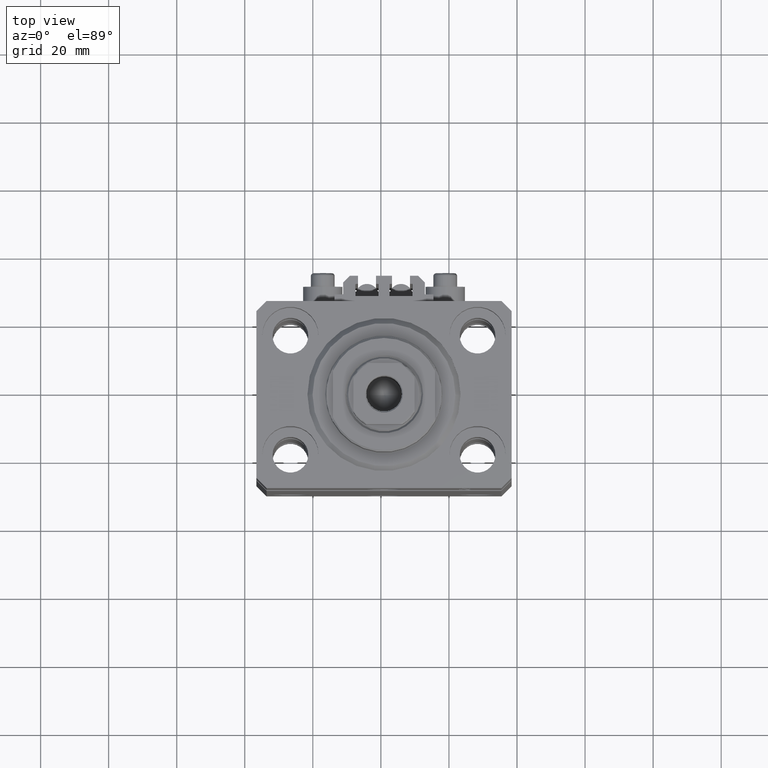
[diagram: clean part render]
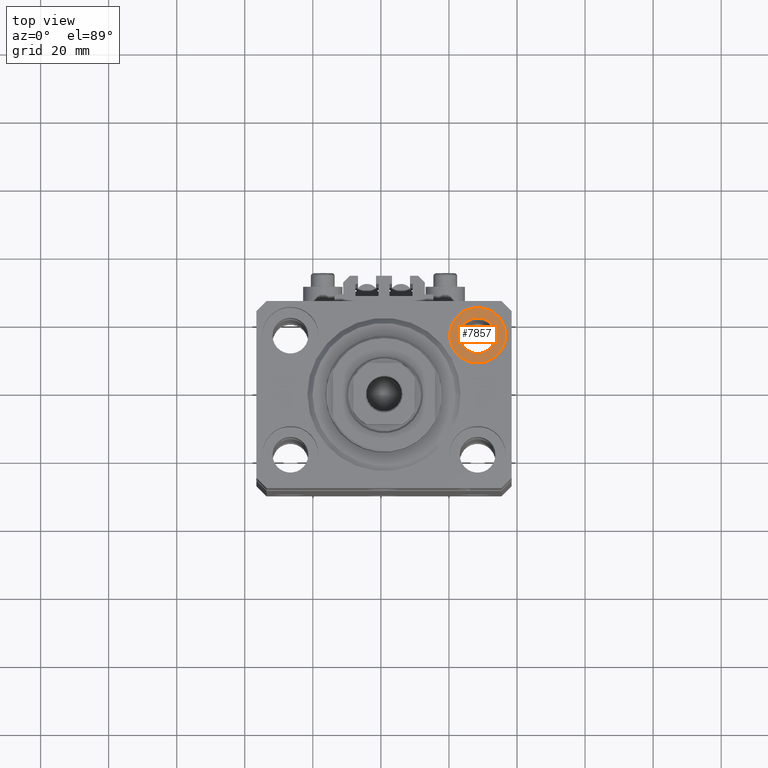
[diagram: same view with one face highlighted and labeled with its STEP entity id]
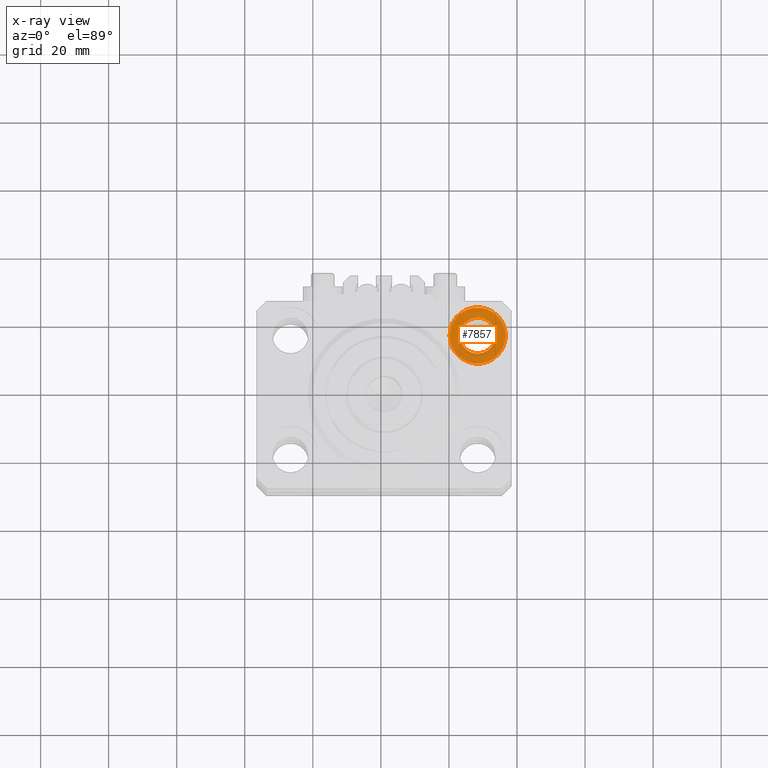
[diagram: x-ray of the same camera — body ghosted, the highlighted face saturated]
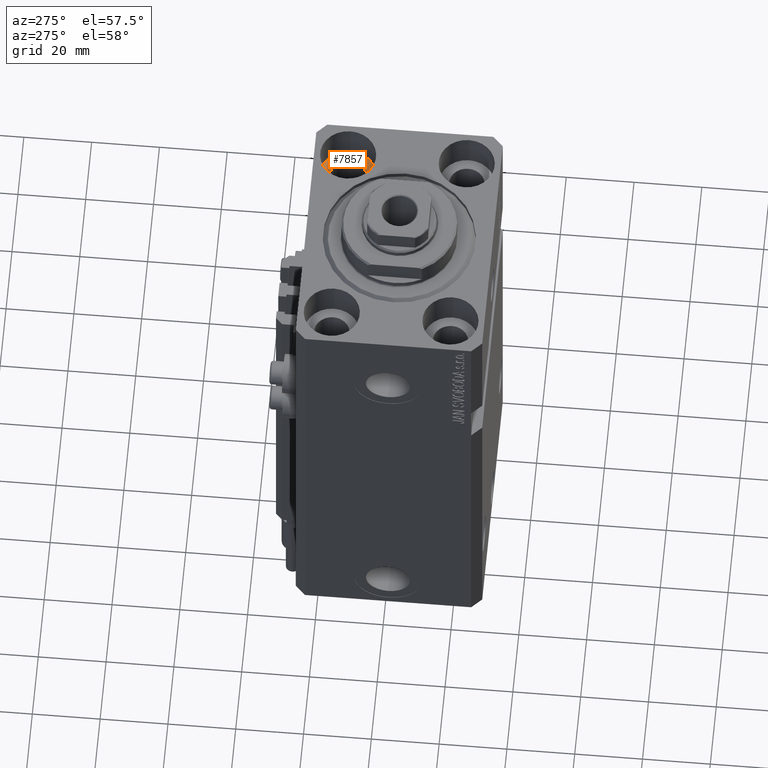
[diagram: same view with one face highlighted and labeled with its STEP entity id]
A machine part, top view. The second image highlights one B-rep face of the part: STEP entity #7857.
The next image is the same camera in x-ray: the body ghosted, the highlighted face saturated — about 0% of this face is hidden behind the body in this view.
A second angle (auxiliary view) of the same face is appended — the face is thin or edge-on in the first view.
In plain terms, the highlighted planar face has unit normal (0, 0, 1).
Its self-contained STEP definition (entity closure, byte-faithful):
#14 = CIRCLE ( 'NONE', #32720, 8.249999999999992895 ) ;
#596 = CARTESIAN_POINT ( 'NONE',  ( 35.74999999999999289, 17.50000000000001066, -11.00000000000000000 ) ) ;
#1285 = AXIS2_PLACEMENT_3D ( 'NONE', #47271, #2450, #24376 ) ;
#2274 = FACE_OUTER_BOUND ( 'NONE', #44443, .T. ) ;
#2450 = DIRECTION ( 'NONE',  ( 0.000000000000000000, 0.000000000000000000, 1.000000000000000000 ) ) ;
#2942 = AXIS2_PLACEMENT_3D ( 'NONE', #39137, #14266, #28417 ) ;
#5213 = PLANE ( 'NONE',  #23788 ) ;
#7602 = CIRCLE ( 'NONE', #2942, 8.249999999999992895 ) ;
#7857 = ADVANCED_FACE ( 'NONE', ( #27377, #2274 ), #5213, .T. ) ;
#9863 = AXIS2_PLACEMENT_3D ( 'NONE', #17324, #32685, #21218 ) ;
#10032 = VERTEX_POINT ( 'NONE', #596 ) ;
#11159 = CARTESIAN_POINT ( 'NONE',  ( 22.25000000000000000, 17.50000000000001066, -11.00000000000000000 ) ) ;
#12878 = EDGE_CURVE ( 'NONE', #29064, #21425, #42538, .T. ) ;
#13010 = DIRECTION ( 'NONE',  ( 1.000000000000000000, 0.000000000000000000, -0.000000000000000000 ) ) ;
#14062 = ORIENTED_EDGE ( 'NONE', *, *, #36922, .T. ) ;
#14266 = DIRECTION ( 'NONE',  ( 0.000000000000000000, 0.000000000000000000, 1.000000000000000000 ) ) ;
#15394 = CARTESIAN_POINT ( 'NONE',  ( 27.49999999999999645, 17.50000000000001066, -11.00000000000000000 ) ) ;
#17324 = CARTESIAN_POINT ( 'NONE',  ( 27.49999999999999645, 17.50000000000001066, -11.00000000000000000 ) ) ;
#19593 = CARTESIAN_POINT ( 'NONE',  ( 32.74999999999999289, 17.50000000000001066, -11.00000000000000000 ) ) ;
#20064 = DIRECTION ( 'NONE',  ( 0.000000000000000000, 0.000000000000000000, 1.000000000000000000 ) ) ;
#21218 = DIRECTION ( 'NONE',  ( 1.000000000000000000, 0.000000000000000000, 0.000000000000000000 ) ) ;
#21230 = EDGE_LOOP ( 'NONE', ( #46128, #22567 ) ) ;
#21425 = VERTEX_POINT ( 'NONE', #11159 ) ;
#22567 = ORIENTED_EDGE ( 'NONE', *, *, #46276, .F. ) ;
#23788 = AXIS2_PLACEMENT_3D ( 'NONE', #27615, #20064, #13010 ) ;
#24004 = VERTEX_POINT ( 'NONE', #44737 ) ;
#24376 = DIRECTION ( 'NONE',  ( 1.000000000000000000, 0.000000000000000000, 0.000000000000000000 ) ) ;
#26836 = DIRECTION ( 'NONE',  ( 0.000000000000000000, 0.000000000000000000, 1.000000000000000000 ) ) ;
#27377 = FACE_BOUND ( 'NONE', #21230, .T. ) ;
#27615 = CARTESIAN_POINT ( 'NONE',  ( 27.49999999999999645, 17.50000000000001066, -11.00000000000000000 ) ) ;
#28154 = EDGE_CURVE ( 'NONE', #10032, #24004, #7602, .T. ) ;
#28417 = DIRECTION ( 'NONE',  ( 1.000000000000000000, 0.000000000000000000, 0.000000000000000000 ) ) ;
#29064 = VERTEX_POINT ( 'NONE', #19593 ) ;
#29940 = ORIENTED_EDGE ( 'NONE', *, *, #28154, .T. ) ;
#32685 = DIRECTION ( 'NONE',  ( 0.000000000000000000, 0.000000000000000000, 1.000000000000000000 ) ) ;
#32720 = AXIS2_PLACEMENT_3D ( 'NONE', #15394, #26836, #41937 ) ;
#36922 = EDGE_CURVE ( 'NONE', #24004, #10032, #14, .T. ) ;
#39137 = CARTESIAN_POINT ( 'NONE',  ( 27.49999999999999645, 17.50000000000001066, -11.00000000000000000 ) ) ;
#40165 = CIRCLE ( 'NONE', #1285, 5.249999999999997335 ) ;
#41937 = DIRECTION ( 'NONE',  ( 1.000000000000000000, 0.000000000000000000, 0.000000000000000000 ) ) ;
#42538 = CIRCLE ( 'NONE', #9863, 5.249999999999997335 ) ;
#44443 = EDGE_LOOP ( 'NONE', ( #29940, #14062 ) ) ;
#44737 = CARTESIAN_POINT ( 'NONE',  ( 19.25000000000000000, 17.50000000000001066, -11.00000000000000000 ) ) ;
#46128 = ORIENTED_EDGE ( 'NONE', *, *, #12878, .F. ) ;
#46276 = EDGE_CURVE ( 'NONE', #21425, #29064, #40165, .T. ) ;
#47271 = CARTESIAN_POINT ( 'NONE',  ( 27.49999999999999645, 17.50000000000001066, -11.00000000000000000 ) ) ;